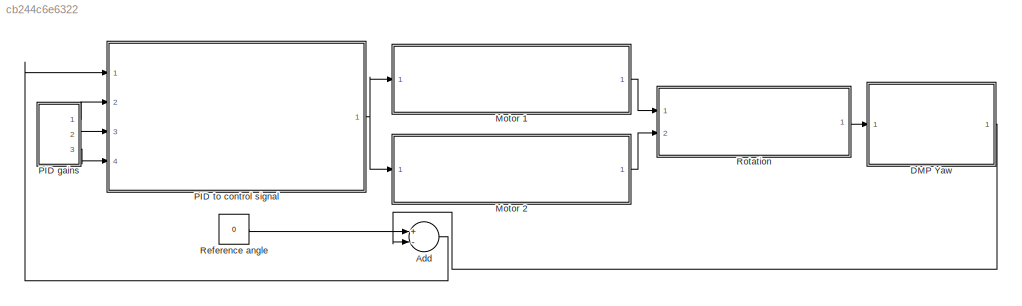
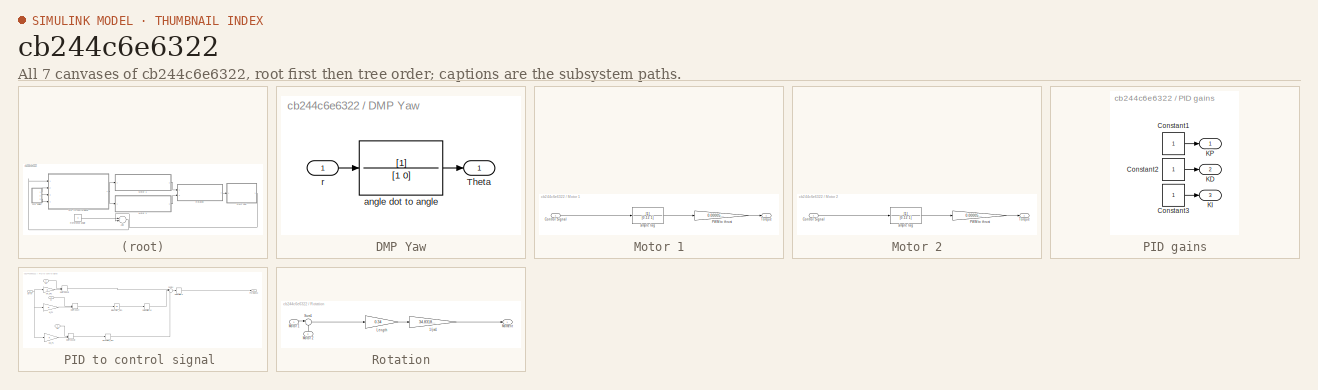
[diagram: thumbnail index - all 7 canvases of the model, root first then tree order]
MODEL slx_cb244c6e6322
KIND model
BLOCK [Sum] Add
  InputSameDT = off
  Inputs = +-
  OutDataTypeStr = Inherit: Inherit via internal rule
  Ports = [2, 1]
  SaturateOnIntegerOverflow = off
BLOCK [SubSystem] DMP Yaw
  Ports = [1, 1]
  RequestExecContextInheritance = off
BLOCK [Outport] DMP Yaw/Theta
  IconDisplay = Port number
BLOCK [TransferFcn] DMP Yaw/angle dot to angle
  Denominator = [1 0]
BLOCK [Inport] DMP Yaw/r
  IconDisplay = Port number
BLOCK [SubSystem] Motor 1
  Ports = [1, 1]
  RequestExecContextInheritance = off
BLOCK [Inport] Motor 1/Control Signal
  IconDisplay = Port number
BLOCK [Gain] Motor 1/PWM to thrust
  Gain = 0.000055905
  OutDataTypeStr = Inherit: Inherit via internal rule
  ParamDataTypeStr = Inherit: Inherit via internal rule
  SaturateOnIntegerOverflow = off
BLOCK [Outport] Motor 1/Torque
  IconDisplay = Port number
BLOCK [TransferFcn] Motor 1/simple lag
  Denominator = [0.12 1]
BLOCK [SubSystem] Motor 2
  Ports = [1, 1]
  RequestExecContextInheritance = off
BLOCK [Inport] Motor 2/Control Signal
  IconDisplay = Port number
BLOCK [Gain] Motor 2/PWM to thrust
  Gain = 0.000055905
  OutDataTypeStr = Inherit: Inherit via internal rule
  ParamDataTypeStr = Inherit: Inherit via internal rule
  SaturateOnIntegerOverflow = off
BLOCK [Outport] Motor 2/Torque
  IconDisplay = Port number
BLOCK [TransferFcn] Motor 2/simple lag
  Denominator = [0.12 1]
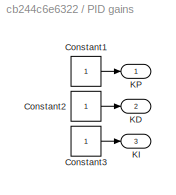
BLOCK [SubSystem] PID gains
  Ports = [0, 3]
  RequestExecContextInheritance = off
BLOCK [Constant] PID gains/Constant1
BLOCK [Constant] PID gains/Constant2
BLOCK [Constant] PID gains/Constant3
BLOCK [Outport] PID gains/KD
  IconDisplay = Port number
  Port = 2
BLOCK [Outport] PID gains/KI
  IconDisplay = Port number
  Port = 3
BLOCK [Outport] PID gains/KP
  IconDisplay = Port number
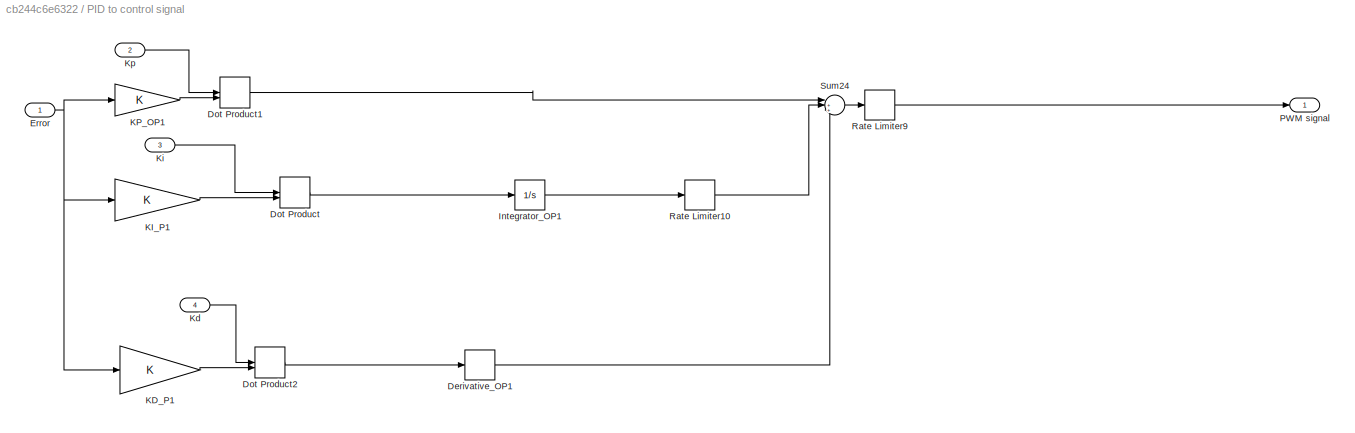
BLOCK [SubSystem] PID to control signal 
  Ports = [4, 1]
  RequestExecContextInheritance = off
BLOCK [Derivative] PID to control signal /Derivative_OP1
BLOCK [DotProduct] PID to control signal /Dot Product
  OutDataTypeStr = Inherit: Inherit via internal rule
BLOCK [DotProduct] PID to control signal /Dot Product1
  OutDataTypeStr = Inherit: Inherit via internal rule
BLOCK [DotProduct] PID to control signal /Dot Product2
  OutDataTypeStr = Inherit: Inherit via internal rule
BLOCK [Inport] PID to control signal /Error
  IconDisplay = Port number
BLOCK [Integrator] PID to control signal /Integrator_OP1
  Ports = [1, 1]
BLOCK [Gain] PID to control signal /KD_P1
  OutDataTypeStr = Inherit: Inherit via internal rule
  ParamDataTypeStr = Inherit: Inherit via internal rule
  SaturateOnIntegerOverflow = off
BLOCK [Gain] PID to control signal /KI_P1
  OutDataTypeStr = Inherit: Inherit via internal rule
  ParamDataTypeStr = Inherit: Inherit via internal rule
  SaturateOnIntegerOverflow = off
BLOCK [Gain] PID to control signal /KP_OP1
  OutDataTypeStr = Inherit: Inherit via internal rule
  ParamDataTypeStr = Inherit: Inherit via internal rule
  SaturateOnIntegerOverflow = off
BLOCK [Inport] PID to control signal /Kd
  IconDisplay = Port number
  Port = 4
BLOCK [Inport] PID to control signal /Ki
  IconDisplay = Port number
  Port = 3
BLOCK [Inport] PID to control signal /Kp
  IconDisplay = Port number
  Port = 2
BLOCK [Outport] PID to control signal /PWM signal 
  IconDisplay = Port number
BLOCK [RateLimiter] PID to control signal /Rate Limiter10
  FallingSlewLimit = -399
  RisingSlewLimit = 399
  SampleTimeMode = inherited
BLOCK [RateLimiter] PID to control signal /Rate Limiter9
  FallingSlewLimit = -551
  RisingSlewLimit = 551
  SampleTimeMode = inherited
BLOCK [Sum] PID to control signal /Sum24
  IconShape = round
  InputSameDT = off
  Inputs = |+++
  OutDataTypeStr = Inherit: Inherit via internal rule
  Ports = [3, 1]
  SaturateOnIntegerOverflow = off
BLOCK [Constant] Reference angle
  Value = 0
BLOCK [SubSystem] Rotation
  Ports = [2, 1]
  RequestExecContextInheritance = off
BLOCK [Gain] Rotation/1//jxx1
  Gain = 34.8318595
  OutDataTypeStr = Inherit: Inherit via internal rule
  ParamDataTypeStr = Inherit: Inherit via internal rule
  SaturateOnIntegerOverflow = off
BLOCK [Gain] Rotation/Length
  Gain = 0.34
  OutDataTypeStr = Inherit: Inherit via internal rule
  ParamDataTypeStr = Inherit: Inherit via internal rule
  SaturateOnIntegerOverflow = off
BLOCK [Outport] Rotation/Moment
  IconDisplay = Port number
BLOCK [Inport] Rotation/Motor 1
  IconDisplay = Port number
BLOCK [Inport] Rotation/Motor 2
  IconDisplay = Port number
  Port = 2
BLOCK [Sum] Rotation/Sum1
  IconShape = round
  InputSameDT = off
  Inputs = |+-
  OutDataTypeStr = Inherit: Inherit via internal rule
  Ports = [2, 1]
  SaturateOnIntegerOverflow = off
LINE Add:1 -> PID to control signal :1
LINE DMP Yaw/angle dot to angle:1 -> DMP Yaw/Theta:1
LINE DMP Yaw/r:1 -> DMP Yaw/angle dot to angle:1
LINE DMP Yaw:1 -> Add:2
LINE Motor 1/Control Signal:1 -> Motor 1/simple lag:1
LINE Motor 1/PWM to thrust:1 -> Motor 1/Torque:1
LINE Motor 1/simple lag:1 -> Motor 1/PWM to thrust:1
LINE Motor 1:1 -> Rotation:1
LINE Motor 2/Control Signal:1 -> Motor 2/simple lag:1
LINE Motor 2/PWM to thrust:1 -> Motor 2/Torque:1
LINE Motor 2/simple lag:1 -> Motor 2/PWM to thrust:1
LINE Motor 2:1 -> Rotation:2
LINE PID gains/Constant1:1 -> PID gains/KP:1
LINE PID gains/Constant2:1 -> PID gains/KD:1
LINE PID gains/Constant3:1 -> PID gains/KI:1
LINE PID gains:1 -> PID to control signal :2
LINE PID gains:2 -> PID to control signal :3
LINE PID gains:3 -> PID to control signal :4
LINE PID to control signal /Derivative_OP1:1 -> PID to control signal /Sum24:3
LINE PID to control signal /Dot Product1:1 -> PID to control signal /Sum24:1
LINE PID to control signal /Dot Product2:1 -> PID to control signal /Derivative_OP1:1
LINE PID to control signal /Dot Product:1 -> PID to control signal /Integrator_OP1:1
NET PID to control signal /Error:1 -> PID to control signal /KD_P1:1, PID to control signal /KI_P1:1, PID to control signal /KP_OP1:1
LINE PID to control signal /Integrator_OP1:1 -> PID to control signal /Rate Limiter10:1
LINE PID to control signal /KD_P1:1 -> PID to control signal /Dot Product2:2
LINE PID to control signal /KI_P1:1 -> PID to control signal /Dot Product:2
LINE PID to control signal /KP_OP1:1 -> PID to control signal /Dot Product1:2
LINE PID to control signal /Kd:1 -> PID to control signal /Dot Product2:1
LINE PID to control signal /Ki:1 -> PID to control signal /Dot Product:1
LINE PID to control signal /Kp:1 -> PID to control signal /Dot Product1:1
LINE PID to control signal /Rate Limiter10:1 -> PID to control signal /Sum24:2
LINE PID to control signal /Rate Limiter9:1 -> PID to control signal /PWM signal :1
LINE PID to control signal /Sum24:1 -> PID to control signal /Rate Limiter9:1
NET PID to control signal :1 -> Motor 1:1, Motor 2:1
LINE Reference angle:1 -> Add:1
LINE Rotation/1//jxx1:1 -> Rotation/Moment:1
LINE Rotation/Length:1 -> Rotation/1//jxx1:1
LINE Rotation/Motor 1:1 -> Rotation/Sum1:1
LINE Rotation/Motor 2:1 -> Rotation/Sum1:2
LINE Rotation/Sum1:1 -> Rotation/Length:1
LINE Rotation:1 -> DMP Yaw:1
note: NET lines group one-source signal fan-out (src -> all destinations, sorted); 1:1 wires keep LINE
